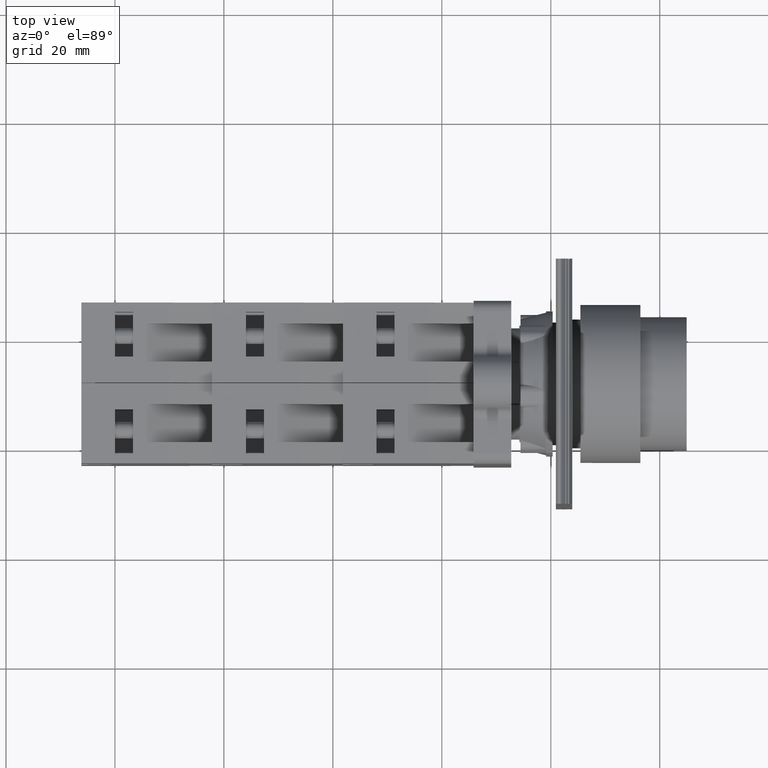
[diagram: clean part render]
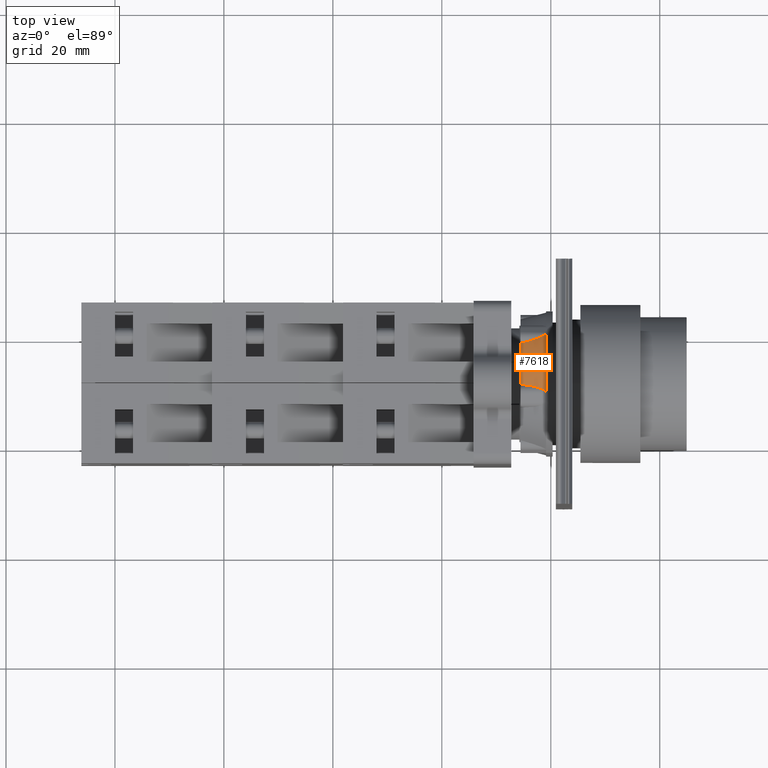
[diagram: same view with one face highlighted and labeled with its STEP entity id]
A machine part, top view. The second image highlights one B-rep face of the part: STEP entity #7618.
In plain terms, the highlighted conical surface has half-angle 14.357 deg.
Its self-contained STEP definition (entity closure, byte-faithful):
#7274=CARTESIAN_POINT('',(-5.624441413677323,5.848611621301249,11.805596786001541));
#7275=VERTEX_POINT('',#7274);
#7284=CARTESIAN_POINT('',(-0.924441413677321,7.539917482810958,11.209925396800372));
#7285=VERTEX_POINT('',#7284);
#7293=CARTESIAN_POINT('',(-5.624441413677296,5.848611621301237,11.805596786001527));
#7294=CARTESIAN_POINT('',(-5.573448501602670,5.933832894014524,11.832147046884179));
#7295=CARTESIAN_POINT('',(-5.499858718227646,6.012731250915878,11.848230603869938));
#7296=CARTESIAN_POINT('',(-5.426497655225992,6.078490703474512,11.857812692444405));
#7297=CARTESIAN_POINT('',(-5.353885066415549,6.143579238095832,11.867297018722327));
#7298=CARTESIAN_POINT('',(-5.274396952157027,6.202936688557573,11.871723568417021));
#7299=CARTESIAN_POINT('',(-5.190253476801074,6.258998099236102,11.873061194871045));
#7300=CARTESIAN_POINT('',(-4.885104151437623,6.462306811826215,11.877912145088006));
#7301=CARTESIAN_POINT('',(-4.520065672206115,6.623796187077274,11.843484477875119));
#7302=CARTESIAN_POINT('',(-4.173129532818458,6.755466330225980,11.800991478268879));
#7303=CARTESIAN_POINT('',(-3.959007105868490,6.836730653561141,11.774765602174991));
#7304=CARTESIAN_POINT('',(-3.757275896402917,6.904405992413334,11.745973106607956));
#7305=CARTESIAN_POINT('',(-3.544573123045781,6.969796648882180,11.713021396935080));
#7306=CARTESIAN_POINT('',(-2.723368144514577,7.222257544403633,11.585801109172095));
#7307=CARTESIAN_POINT('',(-1.810992263511366,7.409345708740828,11.404297475747155));
#7308=CARTESIAN_POINT('',(-0.924441413677320,7.539917482810959,11.209925396800378));
#7309=B_SPLINE_CURVE_WITH_KNOTS('',3,(#7293,#7294,#7295,#7296,#7297,#7298,#7299,#7300,#7301,#7302,#7303,#7304,#7305,#7306,#7307,#7308),.UNSPECIFIED.,.F.,.U.,(4,3,3,3,3,4),(0.680390622135763,0.710017202497259,0.739341514463683,0.845687181497846,0.911321716894358,1.164724182600336),.UNSPECIFIED.);
#7310=EDGE_CURVE('',#7275,#7285,#7309,.T.);
#7360=CARTESIAN_POINT('',(-5.624441413677321,17.218105739390698,11.805596786001535));
#7361=VERTEX_POINT('',#7360);
#7369=CARTESIAN_POINT('',(-0.924441413677320,15.526799877880986,11.209925396800372));
#7370=VERTEX_POINT('',#7369);
#7371=CARTESIAN_POINT('',(-0.924441413677319,15.526799877880986,11.209925396800372));
#7372=CARTESIAN_POINT('',(-1.771683228070775,15.651582192163872,11.395679155724773));
#7373=CARTESIAN_POINT('',(-2.642508015099923,15.828097928679178,11.569570783831567));
#7374=CARTESIAN_POINT('',(-3.434810393553467,16.063731911930713,11.695774695204705));
#7375=CARTESIAN_POINT('',(-3.583648307694598,16.107996919233074,11.719482723144610));
#7376=CARTESIAN_POINT('',(-3.729719096947401,16.154380847261017,11.741474766715571));
#7377=CARTESIAN_POINT('',(-3.872317070512747,16.203047994740086,11.761422624358067));
#7378=CARTESIAN_POINT('',(-4.018377826272958,16.252896952363802,11.781854886403675));
#7379=CARTESIAN_POINT('',(-4.169407172229823,16.308014381532054,11.801382266900255));
#7380=CARTESIAN_POINT('',(-4.322920163511199,16.369765177631844,11.818567876765636));
#7381=CARTESIAN_POINT('',(-4.570134522573403,16.469207468163532,11.846243251289321));
#7382=CARTESIAN_POINT('',(-4.820924727797321,16.584318639088526,11.867753081632380));
#7383=CARTESIAN_POINT('',(-5.047877207843842,16.718508234764201,11.872536055793026));
#7384=CARTESIAN_POINT('',(-5.181444270856136,16.797482080643888,11.875350952598604));
#7385=CARTESIAN_POINT('',(-5.307176962553792,16.882890361152828,11.872586215834463));
#7386=CARTESIAN_POINT('',(-5.417192105390255,16.979951613525607,11.858994946809569));
#7387=CARTESIAN_POINT('',(-5.488457681086891,17.042825922005711,11.850190798702913));
#7388=CARTESIAN_POINT('',(-5.559948776569935,17.117323360540013,11.835645305073706));
#7389=CARTESIAN_POINT('',(-5.612343651444120,17.198637208417377,11.811517539683315));
#7390=CARTESIAN_POINT('',(-5.616499890351045,17.205087453389453,11.809603597575551));
#7391=CARTESIAN_POINT('',(-5.620535544533969,17.211578103962491,11.807630438140807));
#7392=CARTESIAN_POINT('',(-5.624441413677300,17.218105739390705,11.805596786001523));
#7393=B_SPLINE_CURVE_WITH_KNOTS('',3,(#7371,#7372,#7373,#7374,#7375,#7376,#7377,#7378,#7379,#7380,#7381,#7382,#7383,#7384,#7385,#7386,#7387,#7388,#7389,#7390,#7391,#7392),.UNSPECIFIED.,.F.,.U.,(4,3,3,3,3,3,3,4),(0.144484446797570,0.386651227029857,0.432143452503670,0.478740389807791,0.553779198534967,0.597941365397280,0.626548720387784,0.628818007262144),.UNSPECIFIED.);
#7394=EDGE_CURVE('',#7370,#7361,#7393,.T.);
#7500=CARTESIAN_POINT('',(-5.624441413677320,11.533358680345970,0.0));
#7501=DIRECTION('',(1.0,0.0,0.0));
#7502=DIRECTION('',(0.0,1.0,0.0));
#7503=AXIS2_PLACEMENT_3D('',#7500,#7501,#7502);
#7504=CIRCLE('',#7503,13.102994489770934);
#7505=EDGE_CURVE('',#7361,#7275,#7504,.T.);
#7601=CARTESIAN_POINT('',(-3.274441413677319,11.533358680345970,0.0));
#7602=DIRECTION('',(-1.0,0.0,0.0));
#7603=DIRECTION('',(0.0,1.0,0.0));
#7604=AXIS2_PLACEMENT_3D('',#7601,#7602,#7603);
#7605=CONICAL_SURFACE('',#7604,12.501497244885464,14.356985316744316);
#7606=ORIENTED_EDGE('',*,*,#7310,.T.);
#7607=CARTESIAN_POINT('',(-0.924441413677319,11.533358680345970,0.0));
#7608=DIRECTION('',(1.0,0.0,0.0));
#7609=DIRECTION('',(0.0,1.0,0.0));
#7610=AXIS2_PLACEMENT_3D('',#7607,#7608,#7609);
#7611=CIRCLE('',#7610,11.899999999999999);
#7612=EDGE_CURVE('',#7370,#7285,#7611,.T.);
#7613=ORIENTED_EDGE('',*,*,#7612,.F.);
#7614=ORIENTED_EDGE('',*,*,#7394,.T.);
#7615=ORIENTED_EDGE('',*,*,#7505,.T.);
#7616=EDGE_LOOP('',(#7606,#7613,#7614,#7615));
#7617=FACE_OUTER_BOUND('',#7616,.T.);
#7618=ADVANCED_FACE('',(#7617),#7605,.T.);